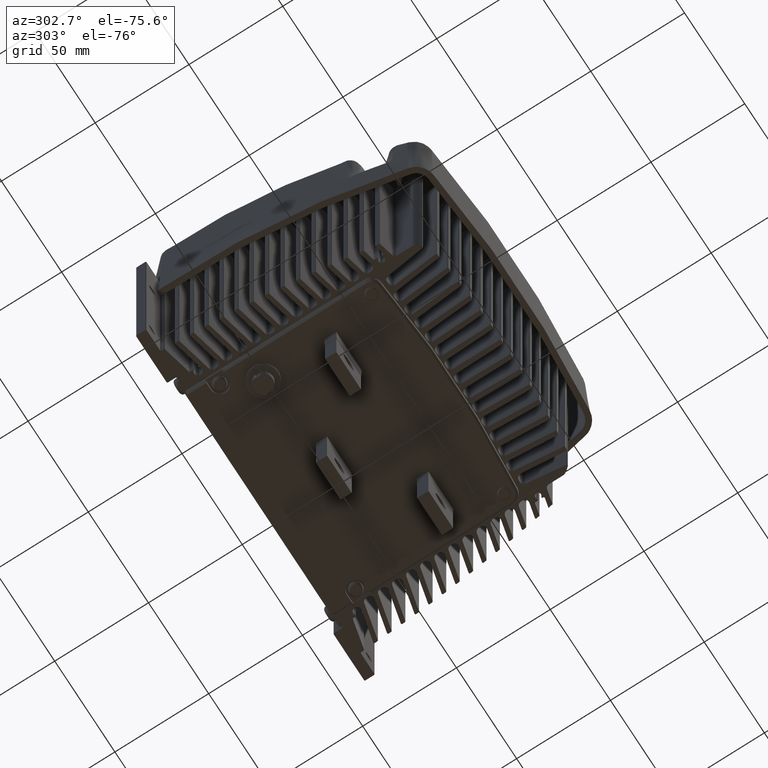
[diagram: clean part render]
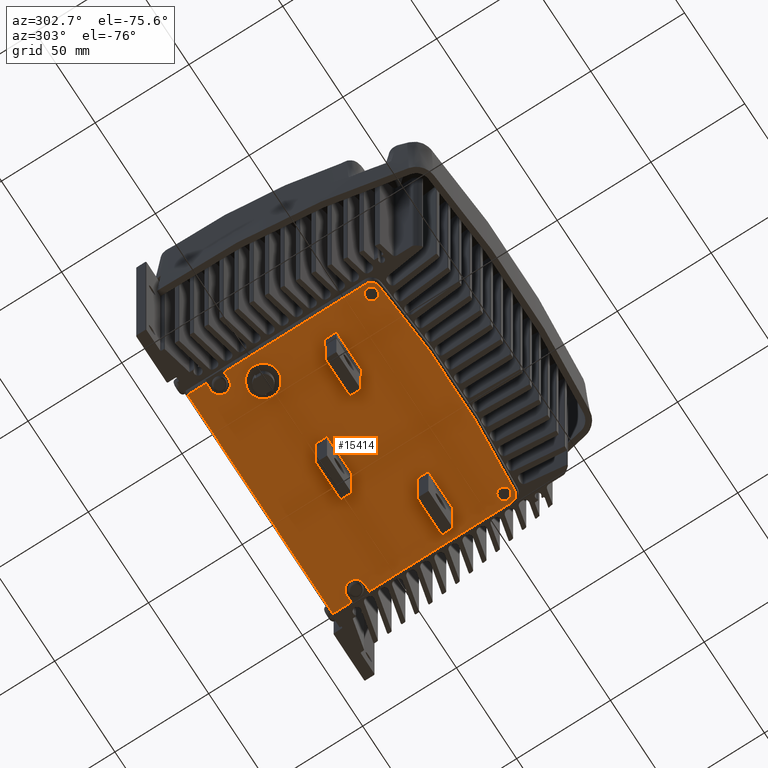
[diagram: same view with one face highlighted and labeled with its STEP entity id]
A machine part, auxiliary view. The second image highlights one B-rep face of the part: STEP entity #15414.
In plain terms, the highlighted planar face has unit normal (0, -0, -1).
Its self-contained STEP definition (entity closure, byte-faithful):
#281=B_SPLINE_CURVE_WITH_KNOTS('',3,(#23414,#23415,#23416,#23417,#23418),
 .UNSPECIFIED.,.F.,.F.,(4,1,4),(0.,0.267427558897638,0.623997637427821),
 .UNSPECIFIED.);
#282=B_SPLINE_CURVE_WITH_KNOTS('',3,(#23426,#23427,#23428,#23429,#23430),
 .UNSPECIFIED.,.F.,.F.,(4,1,4),(0.,0.267427558947326,0.623997637543761),
 .UNSPECIFIED.);
#1352=ELLIPSE('',#16387,4.03366939704934,3.49064301078878);
#1353=ELLIPSE('',#16388,4.03309385014075,3.49261890635578);
#1354=ELLIPSE('',#16390,4.03318265893788,3.49277267431068);
#1355=ELLIPSE('',#16391,4.03668323267349,3.4958610888142);
#1409=LINE('',#23357,#2512);
#1413=LINE('',#23366,#2516);
#1417=LINE('',#23374,#2520);
#1420=LINE('',#23381,#2523);
#1424=LINE('',#23390,#2527);
#1425=LINE('',#23392,#2528);
#1426=LINE('',#23396,#2529);
#1427=LINE('',#23398,#2530);
#1428=LINE('',#23400,#2531);
#1429=LINE('',#23402,#2532);
#1430=LINE('',#23404,#2533);
#1431=LINE('',#23408,#2534);
#1432=LINE('',#23410,#2535);
#1433=LINE('',#23437,#2536);
#1434=LINE('',#23439,#2537);
#1435=LINE('',#23440,#2538);
#1436=LINE('',#23442,#2539);
#1437=LINE('',#23443,#2540);
#1438=LINE('',#23447,#2541);
#1439=LINE('',#23449,#2542);
#1440=LINE('',#23450,#2543);
#2512=VECTOR('',#18180,5.99999999999991);
#2516=VECTOR('',#18186,20.9000000000009);
#2520=VECTOR('',#18192,6.4000000000003);
#2523=VECTOR('',#18197,6.00000000000001);
#2527=VECTOR('',#18203,75.7918369432189);
#2528=VECTOR('',#18204,3.77674370726051);
#2529=VECTOR('',#18207,3.7767437072606);
#2530=VECTOR('',#18208,9.89622791211);
#2531=VECTOR('',#18209,120.553487414521);
#2532=VECTOR('',#18210,9.89625126014799);
#2533=VECTOR('',#18211,3.76178308486194);
#2534=VECTOR('',#18214,3.76178308492918);
#2535=VECTOR('',#18215,75.7918602912566);
#2536=VECTOR('',#18230,20.5);
#2537=VECTOR('',#18231,20.5);
#2538=VECTOR('',#18232,5.9999999999999);
#2539=VECTOR('',#18233,20.9000000000009);
#2540=VECTOR('',#18234,6.4000000000003);
#2541=VECTOR('',#18237,20.4999999999996);
#2542=VECTOR('',#18238,20.5000000000005);
#2543=VECTOR('',#18239,6.0000000000001);
#3609=PLANE('',#16384);
#3946=FACE_BOUND('',#4908,.T.);
#3947=FACE_BOUND('',#4909,.T.);
#3948=FACE_BOUND('',#4910,.T.);
#3949=FACE_BOUND('',#4911,.T.);
#3950=FACE_BOUND('',#4912,.T.);
#3951=FACE_BOUND('',#4913,.T.);
#4032=FACE_OUTER_BOUND('',#4907,.T.);
#4907=EDGE_LOOP('',(#10678,#10679,#10680,#10681,#10682,#10683,#10684,#10685,
#10686,#10687,#10688,#10689,#10690,#10691,#10692,#10693,#10694,#10695));
#4908=EDGE_LOOP('',(#10696));
#4909=EDGE_LOOP('',(#10697));
#4910=EDGE_LOOP('',(#10698,#10699,#10700,#10701));
#4911=EDGE_LOOP('',(#10702,#10703,#10704,#10705));
#4912=EDGE_LOOP('',(#10706));
#4913=EDGE_LOOP('',(#10707,#10708,#10709,#10710));
#5908=CIRCLE('',#16385,4.79313775496141);
#5909=CIRCLE('',#16386,4.79313775496141);
#5910=CIRCLE('',#16389,504.677016749279);
#5911=CIRCLE('',#16392,3.19999999999985);
#5912=CIRCLE('',#16393,3.19999999999978);
#5913=CIRCLE('',#16394,8.);
#6855=VERTEX_POINT('',#23355);
#6856=VERTEX_POINT('',#23356);
#6859=VERTEX_POINT('',#23364);
#6860=VERTEX_POINT('',#23365);
#6863=VERTEX_POINT('',#23373);
#6865=VERTEX_POINT('',#23379);
#6866=VERTEX_POINT('',#23380);
#6869=VERTEX_POINT('',#23388);
#6870=VERTEX_POINT('',#23389);
#6871=VERTEX_POINT('',#23391);
#6872=VERTEX_POINT('',#23393);
#6873=VERTEX_POINT('',#23395);
#6874=VERTEX_POINT('',#23397);
#6875=VERTEX_POINT('',#23399);
#6876=VERTEX_POINT('',#23401);
#6877=VERTEX_POINT('',#23403);
#6878=VERTEX_POINT('',#23405);
#6879=VERTEX_POINT('',#23407);
#6880=VERTEX_POINT('',#23409);
#6881=VERTEX_POINT('',#23411);
#6882=VERTEX_POINT('',#23413);
#6883=VERTEX_POINT('',#23419);
#6884=VERTEX_POINT('',#23421);
#6885=VERTEX_POINT('',#23423);
#6886=VERTEX_POINT('',#23425);
#6887=VERTEX_POINT('',#23432);
#6888=VERTEX_POINT('',#23434);
#6889=VERTEX_POINT('',#23436);
#6890=VERTEX_POINT('',#23438);
#6891=VERTEX_POINT('',#23441);
#6892=VERTEX_POINT('',#23444);
#6893=VERTEX_POINT('',#23446);
#6894=VERTEX_POINT('',#23448);
#8359=EDGE_CURVE('',#6855,#6856,#1409,.T.);
#8363=EDGE_CURVE('',#6859,#6860,#1413,.T.);
#8367=EDGE_CURVE('',#6860,#6863,#1417,.T.);
#8370=EDGE_CURVE('',#6865,#6866,#1420,.T.);
#8374=EDGE_CURVE('',#6869,#6870,#1424,.T.);
#8375=EDGE_CURVE('',#6871,#6869,#1425,.T.);
#8376=EDGE_CURVE('',#6872,#6871,#5908,.T.);
#8377=EDGE_CURVE('',#6873,#6872,#1426,.T.);
#8378=EDGE_CURVE('',#6874,#6873,#1427,.T.);
#8379=EDGE_CURVE('',#6875,#6874,#1428,.T.);
#8380=EDGE_CURVE('',#6876,#6875,#1429,.T.);
#8381=EDGE_CURVE('',#6877,#6876,#1430,.T.);
#8382=EDGE_CURVE('',#6878,#6877,#5909,.T.);
#8383=EDGE_CURVE('',#6879,#6878,#1431,.T.);
#8384=EDGE_CURVE('',#6880,#6879,#1432,.T.);
#8385=EDGE_CURVE('',#6881,#6880,#1352,.T.);
#8386=EDGE_CURVE('',#6882,#6881,#281,.T.);
#8387=EDGE_CURVE('',#6883,#6882,#1353,.T.);
#8388=EDGE_CURVE('',#6884,#6883,#5910,.T.);
#8389=EDGE_CURVE('',#6885,#6884,#1354,.T.);
#8390=EDGE_CURVE('',#6886,#6885,#282,.T.);
#8391=EDGE_CURVE('',#6870,#6886,#1355,.T.);
#8392=EDGE_CURVE('',#6887,#6887,#5911,.T.);
#8393=EDGE_CURVE('',#6888,#6888,#5912,.T.);
#8394=EDGE_CURVE('',#6866,#6889,#1433,.T.);
#8395=EDGE_CURVE('',#6890,#6865,#1434,.T.);
#8396=EDGE_CURVE('',#6889,#6890,#1435,.T.);
#8397=EDGE_CURVE('',#6863,#6891,#1436,.T.);
#8398=EDGE_CURVE('',#6891,#6859,#1437,.T.);
#8399=EDGE_CURVE('',#6892,#6892,#5913,.T.);
#8400=EDGE_CURVE('',#6856,#6893,#1438,.T.);
#8401=EDGE_CURVE('',#6894,#6855,#1439,.T.);
#8402=EDGE_CURVE('',#6893,#6894,#1440,.T.);
#10678=ORIENTED_EDGE('',*,*,#8374,.F.);
#10679=ORIENTED_EDGE('',*,*,#8375,.F.);
#10680=ORIENTED_EDGE('',*,*,#8376,.F.);
#10681=ORIENTED_EDGE('',*,*,#8377,.F.);
#10682=ORIENTED_EDGE('',*,*,#8378,.F.);
#10683=ORIENTED_EDGE('',*,*,#8379,.F.);
#10684=ORIENTED_EDGE('',*,*,#8380,.F.);
#10685=ORIENTED_EDGE('',*,*,#8381,.F.);
#10686=ORIENTED_EDGE('',*,*,#8382,.F.);
#10687=ORIENTED_EDGE('',*,*,#8383,.F.);
#10688=ORIENTED_EDGE('',*,*,#8384,.F.);
#10689=ORIENTED_EDGE('',*,*,#8385,.F.);
#10690=ORIENTED_EDGE('',*,*,#8386,.F.);
#10691=ORIENTED_EDGE('',*,*,#8387,.F.);
#10692=ORIENTED_EDGE('',*,*,#8388,.F.);
#10693=ORIENTED_EDGE('',*,*,#8389,.F.);
#10694=ORIENTED_EDGE('',*,*,#8390,.F.);
#10695=ORIENTED_EDGE('',*,*,#8391,.F.);
#10696=ORIENTED_EDGE('',*,*,#8392,.F.);
#10697=ORIENTED_EDGE('',*,*,#8393,.F.);
#10698=ORIENTED_EDGE('',*,*,#8394,.F.);
#10699=ORIENTED_EDGE('',*,*,#8370,.F.);
#10700=ORIENTED_EDGE('',*,*,#8395,.F.);
#10701=ORIENTED_EDGE('',*,*,#8396,.F.);
#10702=ORIENTED_EDGE('',*,*,#8397,.F.);
#10703=ORIENTED_EDGE('',*,*,#8367,.F.);
#10704=ORIENTED_EDGE('',*,*,#8363,.F.);
#10705=ORIENTED_EDGE('',*,*,#8398,.F.);
#10706=ORIENTED_EDGE('',*,*,#8399,.T.);
#10707=ORIENTED_EDGE('',*,*,#8400,.F.);
#10708=ORIENTED_EDGE('',*,*,#8359,.F.);
#10709=ORIENTED_EDGE('',*,*,#8401,.F.);
#10710=ORIENTED_EDGE('',*,*,#8402,.F.);
#15414=ADVANCED_FACE('',(#4032,#3946,#3947,#3948,#3949,#3950,#3951),#3609,
 .T.);
#16384=AXIS2_PLACEMENT_3D('',#23387,#18201,#18202);
#16385=AXIS2_PLACEMENT_3D('',#23394,#18205,#18206);
#16386=AXIS2_PLACEMENT_3D('',#23406,#18212,#18213);
#16387=AXIS2_PLACEMENT_3D('',#23412,#18216,#18217);
#16388=AXIS2_PLACEMENT_3D('',#23420,#18218,#18219);
#16389=AXIS2_PLACEMENT_3D('',#23422,#18220,#18221);
#16390=AXIS2_PLACEMENT_3D('',#23424,#18222,#18223);
#16391=AXIS2_PLACEMENT_3D('',#23431,#18224,#18225);
#16392=AXIS2_PLACEMENT_3D('',#23433,#18226,#18227);
#16393=AXIS2_PLACEMENT_3D('',#23435,#18228,#18229);
#16394=AXIS2_PLACEMENT_3D('',#23445,#18235,#18236);
#18180=DIRECTION('',(-4.18490921346535E-12,1.,-3.46944695694165E-18));
#18186=DIRECTION('',(1.,8.36195109827276E-14,1.19200507040781E-15));
#18192=DIRECTION('',(8.51135312132147E-14,-1.,3.46944695205467E-18));
#18197=DIRECTION('',(-2.21217881796157E-13,1.,-3.46944695221691E-18));
#18201=DIRECTION('center_axis',(1.19200507040781E-15,-3.46944695195322E-18,
-1.));
#18202=DIRECTION('ref_axis',(1.,0.,0.));
#18203=DIRECTION('',(3.04294935077665E-15,-1.,3.46944695195685E-18));
#18204=DIRECTION('',(-1.,-4.99600361081336E-15,-1.19200507040781E-15));
#18205=DIRECTION('center_axis',(1.19200507040781E-15,-3.46944695195322E-18,
-1.));
#18206=DIRECTION('ref_axis',(1.,3.2196467714131E-15,1.19200507040781E-15));
#18207=DIRECTION('',(1.,1.43218770176647E-14,1.19200507040781E-15));
#18208=DIRECTION('',(3.04294935077665E-15,-1.,3.46944695195685E-18));
#18209=DIRECTION('',(-1.,-3.09553647394484E-15,-1.19200507040781E-15));
#18210=DIRECTION('',(-2.93441157970212E-15,1.,-3.46944695195672E-18));
#18211=DIRECTION('',(1.,1.07913576962814E-14,1.19200507040781E-15));
#18212=DIRECTION('center_axis',(1.19200507040781E-15,-3.46944695195322E-18,
-1.));
#18213=DIRECTION('ref_axis',(-1.,-3.7023524342936E-15,-1.19200507040781E-15));
#18214=DIRECTION('',(-1.,-1.21275419771408E-14,-1.19200507040781E-15));
#18215=DIRECTION('',(-2.93441157970212E-15,1.,-3.46944695195672E-18));
#18216=DIRECTION('center_axis',(0.,0.,1.));
#18217=DIRECTION('ref_axis',(0.00100718825785125,-0.999999492785778,0.));
#18218=DIRECTION('center_axis',(2.73146381324637E-11,-2.36658076150614E-10,
1.));
#18219=DIRECTION('ref_axis',(0.993836653010633,0.110854441194851,-9.11689753839687E-13));
#18220=DIRECTION('center_axis',(-1.19200507040781E-15,3.46944695195322E-18,
1.));
#18221=DIRECTION('ref_axis',(3.16685867123098E-15,-1.,3.469446951957E-18));
#18222=DIRECTION('center_axis',(0.,0.,1.));
#18223=DIRECTION('ref_axis',(0.99383689372587,-0.110852283103753,0.));
#18224=DIRECTION('center_axis',(0.,0.,1.));
#18225=DIRECTION('ref_axis',(-0.00102539566015599,-0.999999474281732,0.));
#18226=DIRECTION('center_axis',(2.08282246045564E-16,6.45019040552498E-15,
-1.));
#18227=DIRECTION('ref_axis',(1.,0.,2.08282246045564E-16));
#18228=DIRECTION('center_axis',(2.08282246045564E-16,6.45019040552498E-15,
-1.));
#18229=DIRECTION('ref_axis',(1.,0.,2.08282246045564E-16));
#18230=DIRECTION('',(1.,2.21219897738679E-13,1.19200507040781E-15));
#18231=DIRECTION('',(-1.,-2.21219897738679E-13,-1.19200507040781E-15));
#18232=DIRECTION('',(2.21217881796157E-13,-1.,3.46944695221691E-18));
#18233=DIRECTION('',(-1.,-8.34867091855236E-14,-1.19200507040781E-15));
#18234=DIRECTION('',(-8.30535470854923E-14,1.,-3.46944695205222E-18));
#18235=DIRECTION('center_axis',(-1.19200507040781E-15,3.46944695195322E-18,
1.));
#18236=DIRECTION('ref_axis',(-0.0147015868328676,0.999891925832285,-2.09934380421803E-17));
#18237=DIRECTION('',(1.,4.18491122717328E-12,1.19200507040779E-15));
#18238=DIRECTION('',(-1.,-4.18491122717328E-12,-1.19200507040779E-15));
#18239=DIRECTION('',(4.18490921346535E-12,-1.,3.46944695694165E-18));
#23355=CARTESIAN_POINT('',(87.0661125925635,96.4902227562101,35.0213745303655));
#23356=CARTESIAN_POINT('',(87.0661125925384,102.49022275621,35.0213745303655));
#23357=CARTESIAN_POINT('',(87.066112592581,92.3262585902317,35.0213745303655));
#23364=CARTESIAN_POINT('',(48.6161106345444,73.1902227561568,35.0213745303655));
#23365=CARTESIAN_POINT('',(69.5161106345453,73.1902227561585,35.0213745303655));
#23366=CARTESIAN_POINT('',(83.4161109211855,73.1902227561597,35.0213745303655));
#23373=CARTESIAN_POINT('',(69.5161106345459,66.7902227561582,35.0213745303655));
#23374=CARTESIAN_POINT('',(69.516110634545,77.4762585902259,35.0213745303655));
#23379=CARTESIAN_POINT('',(125.316110034555,66.9902227563486,35.0213745303655));
#23380=CARTESIAN_POINT('',(125.316110034553,72.9902227563486,35.0213745303655));
#23381=CARTESIAN_POINT('',(125.316110034552,77.5762585903254,35.0213745303655));
#23387=CARTESIAN_POINT('Origin',(97.3161113049916,88.1622944242959,35.0213745303655));
#23388=CARTESIAN_POINT('',(37.039367597731,119.2670831212,35.0213745303654));
#23389=CARTESIAN_POINT('',(37.0393675977312,43.4752461779811,35.0213745303654));
#23390=CARTESIAN_POINT('',(37.039367597731,100.892322662262,35.0213745303654));
#23391=CARTESIAN_POINT('',(40.8161113049915,119.2670831212,35.0213745303654));
#23392=CARTESIAN_POINT('',(69.0661113049915,119.2670831212,35.0213745303655));
#23393=CARTESIAN_POINT('',(40.8161113049915,128.853358631123,35.0213745303654));
#23394=CARTESIAN_POINT('Origin',(40.8161113049915,124.060220876162,35.0213745303654));
#23395=CARTESIAN_POINT('',(37.0393675977309,128.853358631123,35.0213745303654));
#23396=CARTESIAN_POINT('',(66.5661113049912,128.853358631124,35.0213745303655));
#23397=CARTESIAN_POINT('',(37.0393675977309,138.749586543233,35.0213745303654));
#23398=CARTESIAN_POINT('',(37.039367597731,100.892322662262,35.0213745303654));
#23399=CARTESIAN_POINT('',(157.592855012252,138.749586543234,35.0213745303656));
#23400=CARTESIAN_POINT('',(128.066111304991,138.749586543234,35.0213745303655));
#23401=CARTESIAN_POINT('',(157.592855012252,128.853335283086,35.0213745303656));
#23402=CARTESIAN_POINT('',(157.592855012252,75.7595726622626,35.0213745303656));
#23403=CARTESIAN_POINT('',(153.83107192739,128.853335283084,35.0213745303656));
#23404=CARTESIAN_POINT('',(125.573439357276,128.853335283086,35.0213745303655));
#23405=CARTESIAN_POINT('',(153.831071927323,119.267106469241,35.0213745303656));
#23406=CARTESIAN_POINT('Origin',(153.816111304991,124.060220876162,35.0213745303656));
#23407=CARTESIAN_POINT('',(157.592855012252,119.267106469238,35.0213745303656));
#23408=CARTESIAN_POINT('',(128.066111304991,119.267106469238,35.0213745303655));
#23409=CARTESIAN_POINT('',(157.592855012252,43.4752461779814,35.0213745303656));
#23410=CARTESIAN_POINT('',(157.592855012252,75.7595726622626,35.0213745303656));
#23411=CARTESIAN_POINT('',(157.592782093998,43.4491739633693,35.0213745303656));
#23412=CARTESIAN_POINT('Origin',(154.102211407754,43.4764251205768,35.0213745303656));
#23413=CARTESIAN_POINT('',(153.788304115174,39.1921930409279,35.0213745303656));
#23414=CARTESIAN_POINT('Ctrl Pts',(153.78830411639,39.1921930410717,35.0213745303656));
#23415=CARTESIAN_POINT('Ctrl Pts',(154.67355775828,39.2969063170405,35.0213745303656));
#23416=CARTESIAN_POINT('Ctrl Pts',(156.663701271555,40.2021011310089,35.0213745303656));
#23417=CARTESIAN_POINT('Ctrl Pts',(157.586133801345,42.2606256288151,35.0213745303656));
#23418=CARTESIAN_POINT('Ctrl Pts',(157.592782093998,43.4491739633693,35.0213745303656));
#23419=CARTESIAN_POINT('',(153.762124116987,39.1891713938495,35.0213745303656));
#23420=CARTESIAN_POINT('Origin',(153.370334763365,42.6597467532271,35.0213745311976));
#23421=CARTESIAN_POINT('',(40.870098493,39.1891713938791,35.0213745303654));
#23422=CARTESIAN_POINT('Origin',(97.3161113049902,540.699628784899,35.0213745303655));
#23423=CARTESIAN_POINT('',(40.843918495417,39.1921930408557,35.0213745303654));
#23424=CARTESIAN_POINT('Origin',(41.2619074056039,42.6598992931402,35.0213745303654));
#23425=CARTESIAN_POINT('',(37.0394405159889,43.4491739627696,35.0213745303654));
#23426=CARTESIAN_POINT('Ctrl Pts',(37.0394405159956,43.449173961571,35.0213745303654));
#23427=CARTESIAN_POINT('Ctrl Pts',(37.0444267358578,42.5577627104919,35.0213745303654));
#23428=CARTESIAN_POINT('Ctrl Pts',(37.7211203785133,40.4787472791163,35.0213745303654));
#23429=CARTESIAN_POINT('Ctrl Pts',(39.6635803059514,39.3318107416712,35.0213745303654));
#23430=CARTESIAN_POINT('Ctrl Pts',(40.8439184954169,39.1921930408557,35.0213745303654));
#23431=CARTESIAN_POINT('Origin',(40.5352292991707,43.4764410823927,35.0213745303654));
#23432=CARTESIAN_POINT('',(39.1161113049968,44.0601959761662,35.0213745303652));
#23433=CARTESIAN_POINT('Origin',(42.3161113049966,44.0601959761662,35.0213745303652));
#23434=CARTESIAN_POINT('',(149.116111304997,44.0601959761665,35.0213745303652));
#23435=CARTESIAN_POINT('Origin',(152.316111304997,44.0601959761665,35.0213745303652));
#23436=CARTESIAN_POINT('',(145.816110034553,72.9902227563531,35.0213745303656));
#23437=CARTESIAN_POINT('',(116.441110607251,72.9902227563467,35.0213745303655));
#23438=CARTESIAN_POINT('',(145.816110034555,66.9902227563532,35.0213745303656));
#23439=CARTESIAN_POINT('',(116.441110607252,66.9902227563467,35.0213745303655));
#23440=CARTESIAN_POINT('',(145.816110034552,77.5762585903299,35.0213745303656));
#23441=CARTESIAN_POINT('',(48.616110634545,66.7902227561565,35.0213745303655));
#23442=CARTESIAN_POINT('',(72.9661109211856,66.7902227561585,35.0213745303655));
#23443=CARTESIAN_POINT('',(48.6161106345438,80.6762585902243,35.0213745303655));
#23444=CARTESIAN_POINT('',(49.9334984485354,98.5522719695049,35.0213745303652));
#23445=CARTESIAN_POINT('Origin',(49.8158857538724,106.551407376163,35.0213745303655));
#23446=CARTESIAN_POINT('',(107.566112592538,102.490222756296,35.0213745303655));
#23447=CARTESIAN_POINT('',(97.3161124156248,102.490222756253,35.0213745303655));
#23448=CARTESIAN_POINT('',(107.566112592564,96.4902227562959,35.0213745303655));
#23449=CARTESIAN_POINT('',(97.3161124156499,96.490222756253,35.0213745303655));
#23450=CARTESIAN_POINT('',(107.566112592581,92.3262585903174,35.0213745303655));